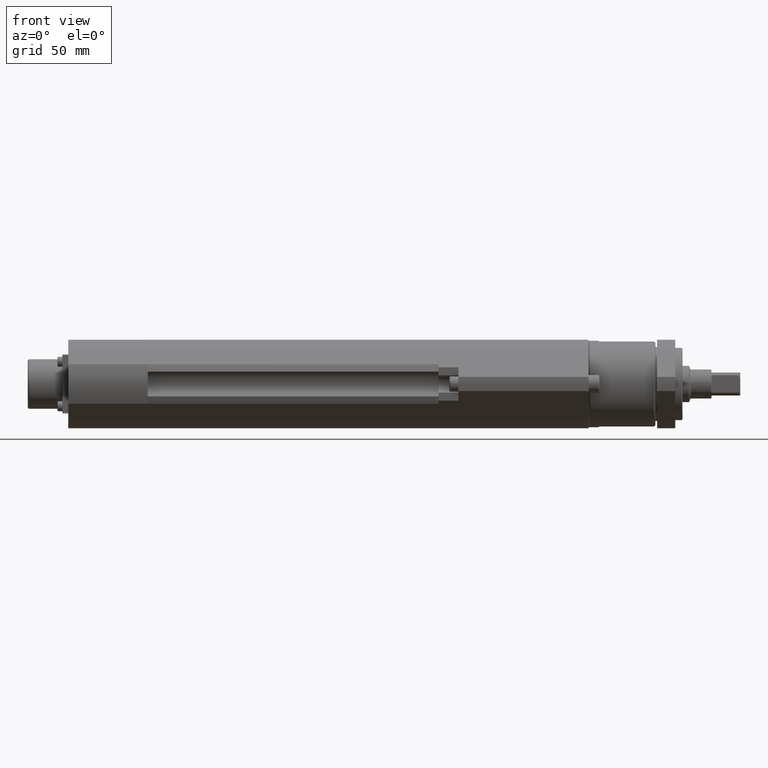
[diagram: clean part render]
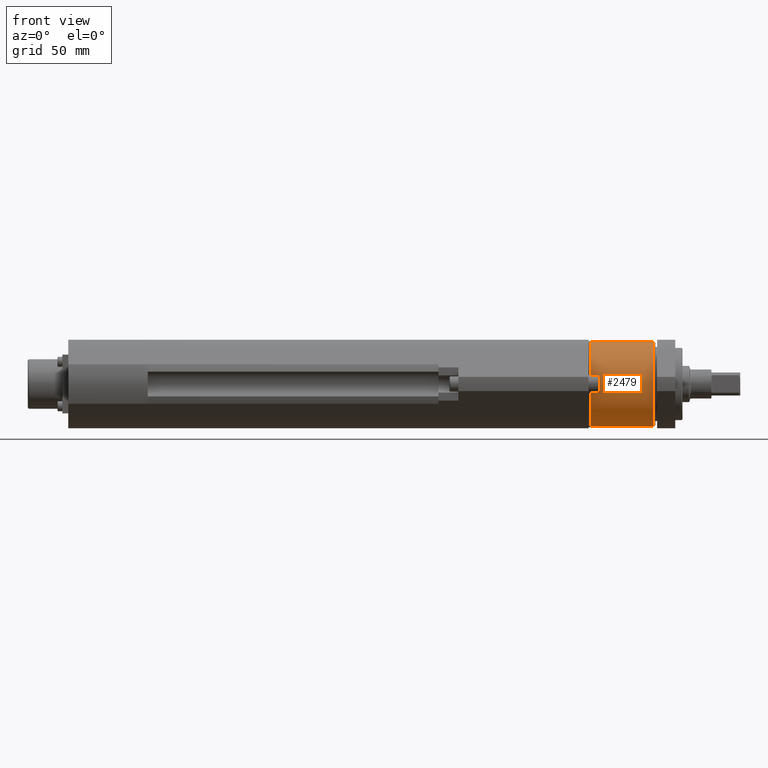
[diagram: same view with one face highlighted and labeled with its STEP entity id]
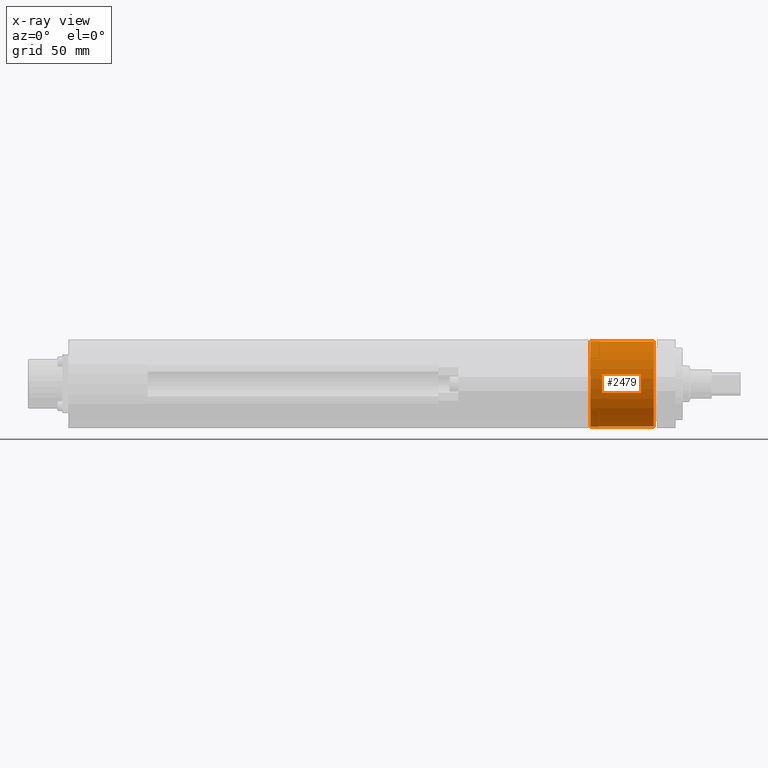
[diagram: x-ray of the same camera — body ghosted, the highlighted face saturated]
A machine part, front view. The second image highlights one B-rep face of the part: STEP entity #2479.
The next image is the same camera in x-ray: the body ghosted, the highlighted face saturated — about 0% of this face is hidden behind the body in this view.
In plain terms, the highlighted cylindrical surface (partial cylindrical patch) has radius 23.5 mm, axis along (1, -0, -0).
Its self-contained STEP definition (entity closure, byte-faithful):
#200 = EDGE_LOOP ( 'NONE', ( #7004, #8504, #9139, #1073 ) ) ;
#516 = VERTEX_POINT ( 'NONE', #9136 ) ;
#783 = CYLINDRICAL_SURFACE ( 'NONE', #1395, 23.50000000000000000 ) ;
#991 = VERTEX_POINT ( 'NONE', #1254 ) ;
#1073 = ORIENTED_EDGE ( 'NONE', *, *, #3329, .T. ) ;
#1162 = VECTOR ( 'NONE', #7262, 1000.000000000000000 ) ;
#1183 = DIRECTION ( 'NONE',  ( 0.0000000000000000000, 0.0000000000000000000, -1.000000000000000000 ) ) ;
#1254 = CARTESIAN_POINT ( 'NONE',  ( -11.99999999999999600, 2.877919977996280300E-015, 23.50000000000000000 ) ) ;
#1319 = CARTESIAN_POINT ( 'NONE',  ( -48.00000000000000000, 2.877919977996280300E-015, 23.50000000000000000 ) ) ;
#1395 = AXIS2_PLACEMENT_3D ( 'NONE', #6200, #6919, #1183 ) ;
#1607 = VERTEX_POINT ( 'NONE', #8848 ) ;
#1749 = CARTESIAN_POINT ( 'NONE',  ( -11.99999999999999600, 0.0000000000000000000, 0.0000000000000000000 ) ) ;
#2296 = VERTEX_POINT ( 'NONE', #7137 ) ;
#2450 = DIRECTION ( 'NONE',  ( 0.0000000000000000000, 0.0000000000000000000, 1.000000000000000000 ) ) ;
#2479 = ADVANCED_FACE ( 'NONE', ( #8415 ), #783, .T. ) ;
#2944 = CIRCLE ( 'NONE', #7924, 23.50000000000000000 ) ;
#2976 = EDGE_CURVE ( 'NONE', #1607, #516, #2944, .T. ) ;
#2985 = EDGE_CURVE ( 'NONE', #1607, #991, #7009, .T. ) ;
#3329 = EDGE_CURVE ( 'NONE', #2296, #991, #3612, .T. ) ;
#3612 = CIRCLE ( 'NONE', #5152, 23.50000000000000000 ) ;
#3638 = EDGE_CURVE ( 'NONE', #516, #2296, #7549, .T. ) ;
#4143 = DIRECTION ( 'NONE',  ( 1.000000000000000000, -0.0000000000000000000, -0.0000000000000000000 ) ) ;
#5152 = AXIS2_PLACEMENT_3D ( 'NONE', #1749, #6760, #2450 ) ;
#5605 = DIRECTION ( 'NONE',  ( 1.000000000000000000, -0.0000000000000000000, -0.0000000000000000000 ) ) ;
#5868 = CARTESIAN_POINT ( 'NONE',  ( -48.00000000000000000, 0.0000000000000000000, -23.50000000000000000 ) ) ;
#6200 = CARTESIAN_POINT ( 'NONE',  ( -48.00000000000000000, 0.0000000000000000000, 0.0000000000000000000 ) ) ;
#6760 = DIRECTION ( 'NONE',  ( -1.000000000000000000, 0.0000000000000000000, 0.0000000000000000000 ) ) ;
#6919 = DIRECTION ( 'NONE',  ( 1.000000000000000000, -0.0000000000000000000, -0.0000000000000000000 ) ) ;
#7004 = ORIENTED_EDGE ( 'NONE', *, *, #2985, .F. ) ;
#7009 = LINE ( 'NONE', #1319, #8470 ) ;
#7137 = CARTESIAN_POINT ( 'NONE',  ( -11.99999999999999600, 0.0000000000000000000, -23.50000000000000000 ) ) ;
#7262 = DIRECTION ( 'NONE',  ( 1.000000000000000000, -0.0000000000000000000, -0.0000000000000000000 ) ) ;
#7549 = LINE ( 'NONE', #5868, #1162 ) ;
#7924 = AXIS2_PLACEMENT_3D ( 'NONE', #8473, #4143, #9188 ) ;
#8415 = FACE_OUTER_BOUND ( 'NONE', #200, .T. ) ;
#8470 = VECTOR ( 'NONE', #5605, 1000.000000000000000 ) ;
#8473 = CARTESIAN_POINT ( 'NONE',  ( -47.00000000000000000, 0.0000000000000000000, 0.0000000000000000000 ) ) ;
#8504 = ORIENTED_EDGE ( 'NONE', *, *, #2976, .T. ) ;
#8848 = CARTESIAN_POINT ( 'NONE',  ( -47.00000000000000000, 2.877919977996280300E-015, 23.50000000000000000 ) ) ;
#9136 = CARTESIAN_POINT ( 'NONE',  ( -47.00000000000000000, 0.0000000000000000000, -23.50000000000000000 ) ) ;
#9139 = ORIENTED_EDGE ( 'NONE', *, *, #3638, .T. ) ;
#9188 = DIRECTION ( 'NONE',  ( 0.0000000000000000000, 0.0000000000000000000, 1.000000000000000000 ) ) ;